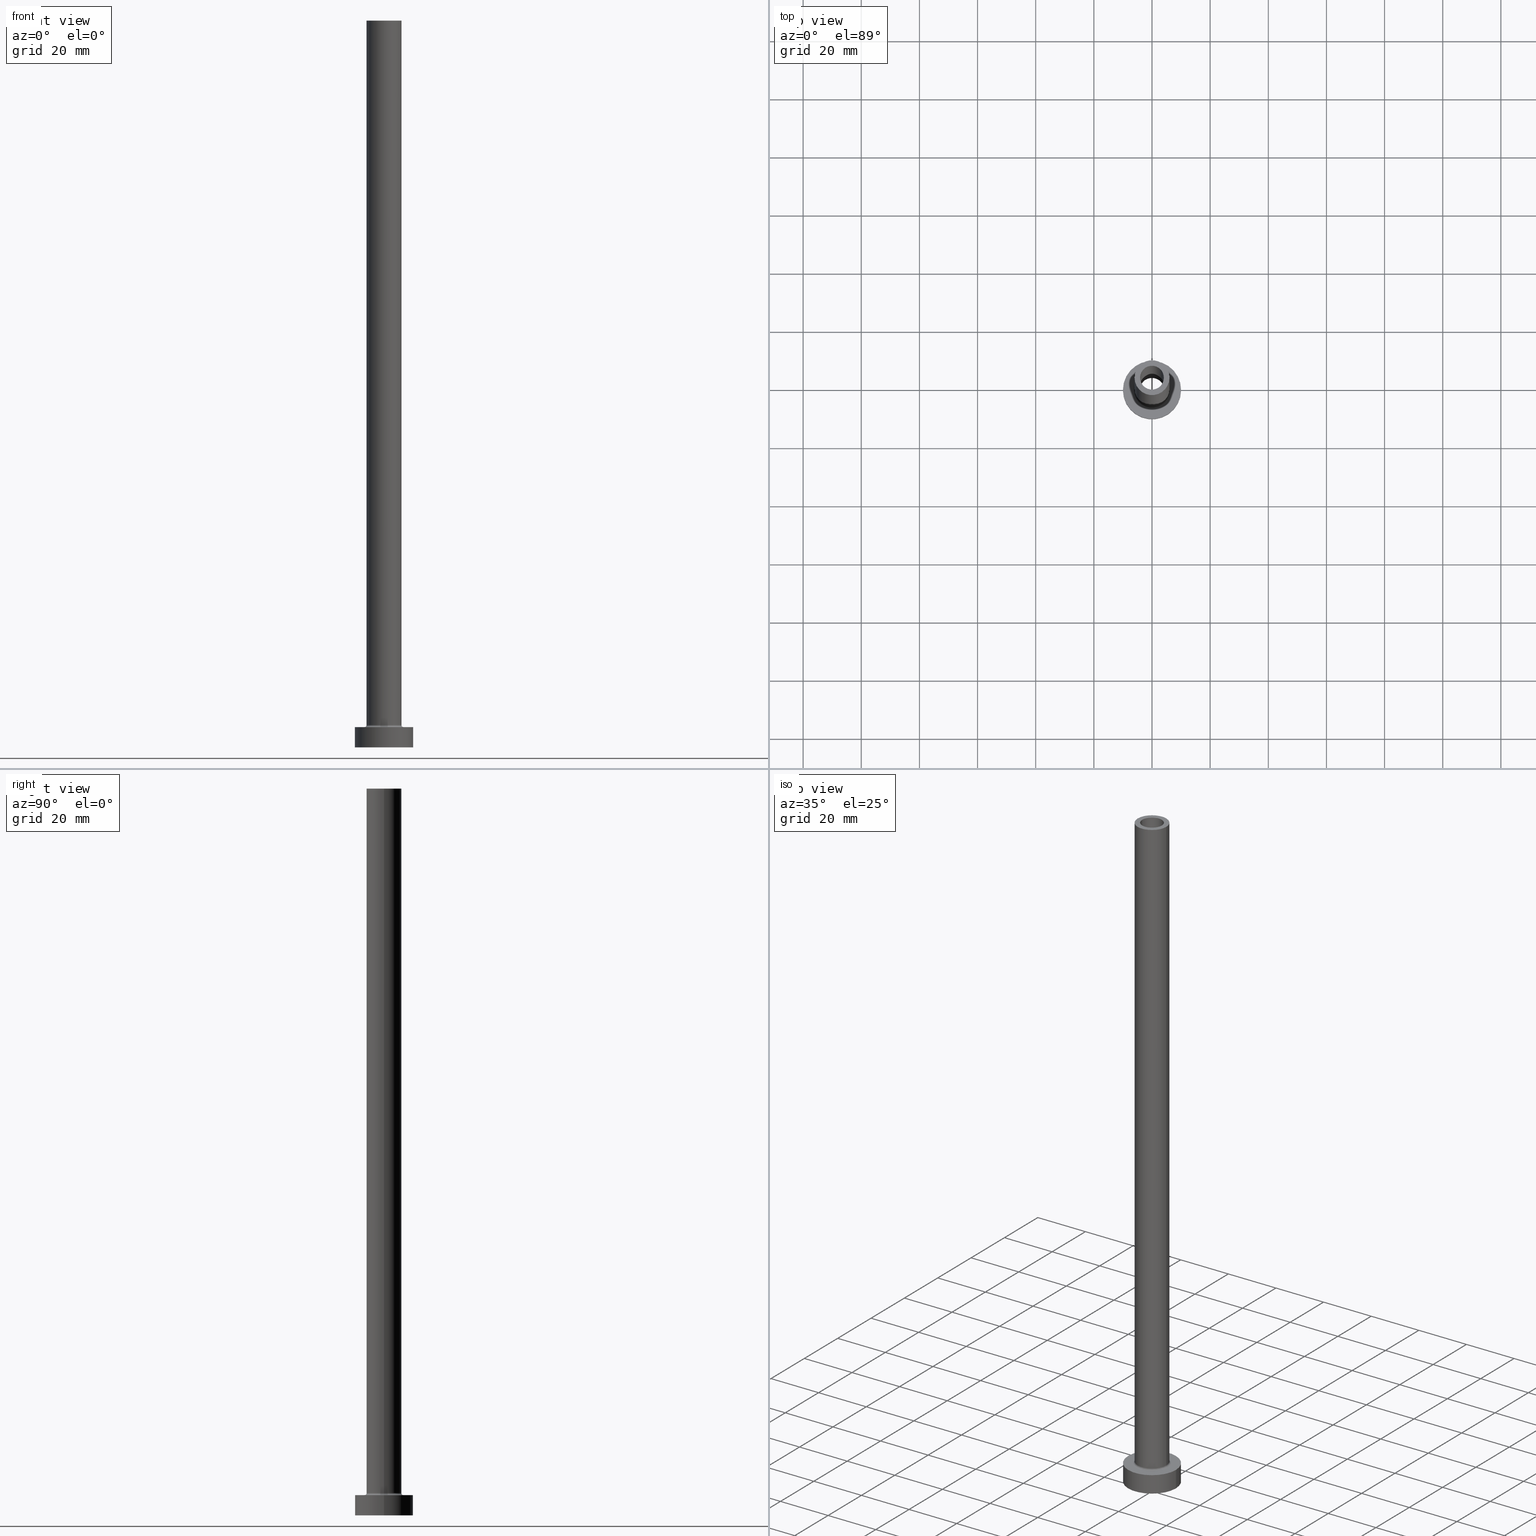
[diagram: canonical four-view strip — front | top / right | iso, engineering-drawing reading convention]
A machine part, canonical four-view strip (front | top / right | iso — engineering-drawing reading convention). The complete STEP part file that produces these views, byte-faithful:
ISO-10303-21;
HEADER;
FILE_DESCRIPTION (( 'STEP AP203' ),
    '1' );
FILE_NAME ('bac2.STEP',
    '2023-02-13T07:40:30',
    ( '' ),
    ( '' ),
    'SwSTEP 2.0',
    'SolidWorks 2019',
    '' );
FILE_SCHEMA (( 'CONFIG_CONTROL_DESIGN' ));
ENDSEC;

DATA;
#1 = FACE_OUTER_BOUND ( 'NONE', #306, .T. ) ;
#2 = DIRECTION ( 'NONE',  ( 0.000000000000000000, 0.000000000000000000, 1.000000000000000000 ) ) ;
#3 = DIRECTION ( 'NONE',  ( 1.000000000000000000, 0.000000000000000000, 0.000000000000000000 ) ) ;
#4 = ORGANIZATION ( 'NEUR�EN�', 'NEUR�EN�', '' ) ;
#5 = DIRECTION ( 'NONE',  ( 1.000000000000000000, 0.000000000000000000, 0.000000000000000000 ) ) ;
#6 = EDGE_LOOP ( 'NONE', ( #126, #346 ) ) ;
#7 = DIRECTION ( 'NONE',  ( 0.000000000000000000, 0.000000000000000000, 1.000000000000000000 ) ) ;
#8 = FACE_OUTER_BOUND ( 'NONE', #383, .T. ) ;
#9 = EDGE_CURVE ( 'NONE', #52, #75, #183, .T. ) ;
#10 = CARTESIAN_POINT ( 'NONE',  ( -4.099999999999999645, 0.000000000000000000, 250.0000000000000000 ) ) ;
#11 = CARTESIAN_POINT ( 'NONE',  ( 0.000000000000000000, 0.000000000000000000, 7.000000000000000000 ) ) ;
#12 = DIRECTION ( 'NONE',  ( 1.000000000000000000, 0.000000000000000000, 0.000000000000000000 ) ) ;
#13 = EDGE_CURVE ( 'NONE', #82, #233, #455, .T. ) ;
#14 = CC_DESIGN_PERSON_AND_ORGANIZATION_ASSIGNMENT ( #112, #110, ( #190 ) ) ;
#15 = CARTESIAN_POINT ( 'NONE',  ( 0.000000000000000000, 0.000000000000000000, 250.0000000000000000 ) ) ;
#16 = ORIENTED_EDGE ( 'NONE', *, *, #321, .F. ) ;
#17 = PRODUCT_DEFINITION_FORMATION_WITH_SPECIFIED_SOURCE ( 'LIBOVOLN�', '', #190, .NOT_KNOWN. ) ;
#18 = VERTEX_POINT ( 'NONE', #174 ) ;
#19 = APPROVAL ( #236, 'NEUR�EN�' ) ;
#20 = DESIGN_CONTEXT ( 'detailed design', #194, 'design' ) ;
#21 = ORIENTED_EDGE ( 'NONE', *, *, #394, .F. ) ;
#22 = EDGE_LOOP ( 'NONE', ( #21, #299, #51, #379 ) ) ;
#23 = AXIS2_PLACEMENT_3D ( 'NONE', #353, #389, #426 ) ;
#24 = AXIS2_PLACEMENT_3D ( 'NONE', #441, #125, #273 ) ;
#25 = PLANE ( 'NONE',  #146 ) ;
#26 = CARTESIAN_POINT ( 'NONE',  ( 0.000000000000000000, 0.000000000000000000, 7.000000000000000000 ) ) ;
#27 = ORIENTED_EDGE ( 'NONE', *, *, #100, .F. ) ;
#28 = SHAPE_DEFINITION_REPRESENTATION ( #370, #200 ) ;
#29 = CARTESIAN_POINT ( 'NONE',  ( 10.00000000000000000, 1.224646799147353256E-15, 0.000000000000000000 ) ) ;
#30 = CARTESIAN_POINT ( 'NONE',  ( -6.000000000000000888, 0.000000000000000000, 250.0000000000000000 ) ) ;
#31 = ORIENTED_EDGE ( 'NONE', *, *, #442, .F. ) ;
#32 = FACE_OUTER_BOUND ( 'NONE', #49, .T. ) ;
#33 = DIRECTION ( 'NONE',  ( 1.000000000000000000, 0.000000000000000000, 0.000000000000000000 ) ) ;
#34 = DIRECTION ( 'NONE',  ( -1.000000000000000000, 0.000000000000000000, 0.000000000000000000 ) ) ;
#35 = CIRCLE ( 'NONE', #191, 4.250000000000000000 ) ;
#36 = FACE_BOUND ( 'NONE', #203, .T. ) ;
#37 = AXIS2_PLACEMENT_3D ( 'NONE', #402, #76, #71 ) ;
#38 = ADVANCED_FACE ( 'NONE', ( #310, #170 ), #414, .T. ) ;
#39 = CYLINDRICAL_SURFACE ( 'NONE', #339, 4.099999999999999645 ) ;
#40 =( NAMED_UNIT ( * ) PLANE_ANGLE_UNIT ( ) SI_UNIT ( $, .RADIAN. ) );
#41 = CARTESIAN_POINT ( 'NONE',  ( 0.000000000000000000, 0.000000000000000000, 7.000000000000000000 ) ) ;
#42 = VERTEX_POINT ( 'NONE', #171 ) ;
#43 = PERSON_AND_ORGANIZATION_ROLE ( 'creator' ) ;
#44 = VERTEX_POINT ( 'NONE', #132 ) ;
#45 = MECHANICAL_CONTEXT ( 'NONE', #288, 'mechanical' ) ;
#46 = AXIS2_PLACEMENT_3D ( 'NONE', #329, #141, #33 ) ;
#47 = EDGE_CURVE ( 'NONE', #18, #113, #104, .T. ) ;
#48 = ORIENTED_EDGE ( 'NONE', *, *, #437, .F. ) ;
#49 = EDGE_LOOP ( 'NONE', ( #451, #347, #381, #27 ) ) ;
#50 = AXIS2_PLACEMENT_3D ( 'NONE', #225, #143, #101 ) ;
#51 = ORIENTED_EDGE ( 'NONE', *, *, #217, .T. ) ;
#52 = VERTEX_POINT ( 'NONE', #96 ) ;
#53 = ORIENTED_EDGE ( 'NONE', *, *, #177, .F. ) ;
#54 = EDGE_CURVE ( 'NONE', #44, #82, #374, .T. ) ;
#55 = ADVANCED_FACE ( 'NONE', ( #278, #315 ), #25, .T. ) ;
#56 = CC_DESIGN_APPROVAL ( #19, ( #17 ) ) ;
#57 = ORIENTED_EDGE ( 'NONE', *, *, #321, .T. ) ;
#58 = DIRECTION ( 'NONE',  ( 0.000000000000000000, 0.000000000000000000, -1.000000000000000000 ) ) ;
#59 = COORDINATED_UNIVERSAL_TIME_OFFSET ( 1, 0, .AHEAD. ) ;
#60 = DIRECTION ( 'NONE',  ( 0.000000000000000000, -1.000000000000000000, 0.000000000000000000 ) ) ;
#61 = DIRECTION ( 'NONE',  ( 1.000000000000000000, 0.000000000000000000, -0.000000000000000000 ) ) ;
#62 = ORIENTED_EDGE ( 'NONE', *, *, #87, .F. ) ;
#63 = CIRCLE ( 'NONE', #332, 4.099999999999999645 ) ;
#64 = AXIS2_PLACEMENT_3D ( 'NONE', #216, #256, #12 ) ;
#65 = DIRECTION ( 'NONE',  ( 0.000000000000000000, 0.000000000000000000, 1.000000000000000000 ) ) ;
#66 = DIRECTION ( 'NONE',  ( -1.000000000000000000, 1.224646799147353454E-16, 0.000000000000000000 ) ) ;
#67 = DIRECTION ( 'NONE',  ( 0.000000000000000000, 0.000000000000000000, 1.000000000000000000 ) ) ;
#68 = DIRECTION ( 'NONE',  ( 1.000000000000000000, 0.000000000000000000, 0.000000000000000000 ) ) ;
#69 = DIRECTION ( 'NONE',  ( 1.000000000000000000, 0.000000000000000000, 0.000000000000000000 ) ) ;
#70 = LINE ( 'NONE', #107, #93 ) ;
#71 = DIRECTION ( 'NONE',  ( -1.000000000000000000, 0.000000000000000000, 0.000000000000000000 ) ) ;
#72 = CIRCLE ( 'NONE', #401, 6.700000000000001066 ) ;
#73 = DIRECTION ( 'NONE',  ( -0.000000000000000000, -0.000000000000000000, -1.000000000000000000 ) ) ;
#74 = APPLICATION_PROTOCOL_DEFINITION ( 'international standard', 'config_control_design', 1994, #194 ) ;
#75 = VERTEX_POINT ( 'NONE', #456 ) ;
#76 = DIRECTION ( 'NONE',  ( -0.000000000000000000, -0.000000000000000000, -1.000000000000000000 ) ) ;
#77 = FACE_OUTER_BOUND ( 'NONE', #277, .T. ) ;
#78 = VECTOR ( 'NONE', #420, 1000.000000000000000 ) ;
#79 = AXIS2_PLACEMENT_3D ( 'NONE', #252, #249, #293 ) ;
#80 = VERTEX_POINT ( 'NONE', #102 ) ;
#81 = EDGE_CURVE ( 'NONE', #342, #155, #281, .T. ) ;
#82 = VERTEX_POINT ( 'NONE', #349 ) ;
#83 = ORIENTED_EDGE ( 'NONE', *, *, #47, .T. ) ;
#84 = APPROVAL_ROLE ( '' ) ;
#85 = AXIS2_PLACEMENT_3D ( 'NONE', #325, #151, #61 ) ;
#86 = VERTEX_POINT ( 'NONE', #284 ) ;
#87 = EDGE_CURVE ( 'NONE', #410, #342, #311, .T. ) ;
#88 = DATE_AND_TIME ( #385, #128 ) ;
#89 = ORIENTED_EDGE ( 'NONE', *, *, #197, .T. ) ;
#90 = EDGE_CURVE ( 'NONE', #155, #75, #72, .T. ) ;
#91 = DIRECTION ( 'NONE',  ( 1.000000000000000000, 0.000000000000000000, 0.000000000000000000 ) ) ;
#92 = DATE_TIME_ROLE ( 'classification_date' ) ;
#93 = VECTOR ( 'NONE', #182, 1000.000000000000000 ) ;
#94 = ORIENTED_EDGE ( 'NONE', *, *, #417, .F. ) ;
#95 = VECTOR ( 'NONE', #111, 1000.000000000000000 ) ;
#96 = CARTESIAN_POINT ( 'NONE',  ( -6.000000000000000888, 0.000000000000000000, 7.700000000000012612 ) ) ;
#97 = EDGE_LOOP ( 'NONE', ( #129, #239 ) ) ;
#98 = COORDINATED_UNIVERSAL_TIME_OFFSET ( 1, 0, .AHEAD. ) ;
#99 = LINE ( 'NONE', #131, #242 ) ;
#100 = EDGE_CURVE ( 'NONE', #42, #234, #99, .T. ) ;
#101 = DIRECTION ( 'NONE',  ( 1.000000000000000000, 0.000000000000000000, 0.000000000000000000 ) ) ;
#102 = CARTESIAN_POINT ( 'NONE',  ( 4.250000000000000000, 5.204748896376250699E-16, 205.0000000000000284 ) ) ;
#103 = FACE_OUTER_BOUND ( 'NONE', #165, .T. ) ;
#104 = LINE ( 'NONE', #250, #78 ) ;
#105 = AXIS2_PLACEMENT_3D ( 'NONE', #106, #67, #69 ) ;
#106 = CARTESIAN_POINT ( 'NONE',  ( 0.000000000000000000, 0.000000000000000000, 7.700000000000012612 ) ) ;
#107 = CARTESIAN_POINT ( 'NONE',  ( 4.250000000000000000, 5.204748896376250699E-16, 217.0208152801713197 ) ) ;
#108 = DIRECTION ( 'NONE',  ( 1.000000000000000000, 0.000000000000000000, 0.000000000000000000 ) ) ;
#109 = CARTESIAN_POINT ( 'NONE',  ( 0.000000000000000000, 0.000000000000000000, 205.0000000000000284 ) ) ;
#110 = PERSON_AND_ORGANIZATION_ROLE ( 'design_owner' ) ;
#111 = DIRECTION ( 'NONE',  ( -0.000000000000000000, -0.000000000000000000, -1.000000000000000000 ) ) ;
#112 = PERSON_AND_ORGANIZATION ( #251, #4 ) ;
#113 = VERTEX_POINT ( 'NONE', #248 ) ;
#114 = CIRCLE ( 'NONE', #199, 4.250000000000000000 ) ;
#115 = CC_DESIGN_PERSON_AND_ORGANIZATION_ASSIGNMENT ( #116, #43, ( #396 ) ) ;
#116 = PERSON_AND_ORGANIZATION ( #251, #4 ) ;
#117 = CLOSED_SHELL ( 'NONE', ( #179, #144, #351, #359, #460, #260, #38, #119, #428, #55, #388, #272, #376, #443 ) ) ;
#118 = TOROIDAL_SURFACE ( 'NONE', #64, 6.700000000000001066, 0.6999999999999999556 ) ;
#119 = ADVANCED_FACE ( 'NONE', ( #240, #391 ), #215, .F. ) ;
#120 = VERTEX_POINT ( 'NONE', #29 ) ;
#121 = ORIENTED_EDGE ( 'NONE', *, *, #87, .T. ) ;
#122 = ORIENTED_EDGE ( 'NONE', *, *, #425, .T. ) ;
#123 = MANIFOLD_SOLID_BREP ( 'Odebrat vysunut�m4', #117 ) ;
#124 = UNCERTAINTY_MEASURE_WITH_UNIT (LENGTH_MEASURE( 1.000000000000000082E-05 ), #150, 'distance_accuracy_value', 'NONE');
#125 = DIRECTION ( 'NONE',  ( 0.000000000000000000, 0.000000000000000000, 1.000000000000000000 ) ) ;
#126 = ORIENTED_EDGE ( 'NONE', *, *, #442, .T. ) ;
#127 =( GEOMETRIC_REPRESENTATION_CONTEXT ( 3 ) GLOBAL_UNCERTAINTY_ASSIGNED_CONTEXT ( ( #124 ) ) GLOBAL_UNIT_ASSIGNED_CONTEXT ( ( #150, #40, #373 ) ) REPRESENTATION_CONTEXT ( 'NONE', 'WORKASPACE' ) );
#128 = LOCAL_TIME ( 8, 40, 30.00000000000000000, #59 ) ;
#129 = ORIENTED_EDGE ( 'NONE', *, *, #90, .T. ) ;
#130 = EDGE_CURVE ( 'NONE', #449, #234, #35, .T. ) ;
#131 = CARTESIAN_POINT ( 'NONE',  ( -4.250000000000000000, 0.000000000000000000, 217.0208152801713197 ) ) ;
#132 = CARTESIAN_POINT ( 'NONE',  ( -4.099999999999999645, 0.000000000000000000, 250.0000000000000000 ) ) ;
#133 = ORIENTED_EDGE ( 'NONE', *, *, #294, .T. ) ;
#134 = PRODUCT_RELATED_PRODUCT_CATEGORY ( 'detail', '', ( #190 ) ) ;
#135 = COORDINATED_UNIVERSAL_TIME_OFFSET ( 1, 0, .AHEAD. ) ;
#136 = AXIS2_PLACEMENT_3D ( 'NONE', #416, #423, #395 ) ;
#137 = DIRECTION ( 'NONE',  ( -0.000000000000000000, -0.000000000000000000, -1.000000000000000000 ) ) ;
#138 = EDGE_CURVE ( 'NONE', #80, #42, #303, .T. ) ;
#139 = PERSON_AND_ORGANIZATION_ROLE ( 'creator' ) ;
#140 = EDGE_LOOP ( 'NONE', ( #16, #377 ) ) ;
#141 = DIRECTION ( 'NONE',  ( 0.000000000000000000, 0.000000000000000000, 1.000000000000000000 ) ) ;
#142 = CARTESIAN_POINT ( 'NONE',  ( 0.000000000000000000, 0.000000000000000000, 250.0000000000000000 ) ) ;
#143 = DIRECTION ( 'NONE',  ( 0.000000000000000000, 0.000000000000000000, 1.000000000000000000 ) ) ;
#144 = ADVANCED_FACE ( 'NONE', ( #32 ), #430, .F. ) ;
#145 = DIRECTION ( 'NONE',  ( 0.000000000000000000, 0.000000000000000000, 1.000000000000000000 ) ) ;
#146 = AXIS2_PLACEMENT_3D ( 'NONE', #142, #206, #245 ) ;
#147 = CIRCLE ( 'NONE', #184, 10.00000000000000000 ) ;
#148 = DIRECTION ( 'NONE',  ( 0.000000000000000000, 0.000000000000000000, 1.000000000000000000 ) ) ;
#149 = FACE_OUTER_BOUND ( 'NONE', #307, .T. ) ;
#150 =( LENGTH_UNIT ( ) NAMED_UNIT ( * ) SI_UNIT ( .MILLI., .METRE. ) );
#151 = DIRECTION ( 'NONE',  ( 0.000000000000000000, 0.000000000000000000, 1.000000000000000000 ) ) ;
#152 = CARTESIAN_POINT ( 'NONE',  ( -4.250000000000000000, 0.000000000000000000, 0.000000000000000000 ) ) ;
#153 = CYLINDRICAL_SURFACE ( 'NONE', #37, 10.00000000000000000 ) ;
#154 = ORIENTED_EDGE ( 'NONE', *, *, #13, .T. ) ;
#155 = VERTEX_POINT ( 'NONE', #358 ) ;
#156 = APPROVAL_STATUS ( 'not_yet_approved' ) ;
#157 = CIRCLE ( 'NONE', #411, 6.000000000000000888 ) ;
#158 = DIRECTION ( 'NONE',  ( 1.000000000000000000, 0.000000000000000000, 0.000000000000000000 ) ) ;
#159 = PERSON_AND_ORGANIZATION ( #251, #4 ) ;
#160 = ORIENTED_EDGE ( 'NONE', *, *, #138, .T. ) ;
#161 = LOCAL_TIME ( 8, 40, 30.00000000000000000, #135 ) ;
#162 = ORIENTED_EDGE ( 'NONE', *, *, #54, .F. ) ;
#163 = EDGE_LOOP ( 'NONE', ( #162, #407 ) ) ;
#164 = CC_DESIGN_PERSON_AND_ORGANIZATION_ASSIGNMENT ( #352, #454, ( #323 ) ) ;
#165 = EDGE_LOOP ( 'NONE', ( #244, #121, #133, #94 ) ) ;
#166 = EDGE_LOOP ( 'NONE', ( #363, #271 ) ) ;
#167 = AXIS2_PLACEMENT_3D ( 'NONE', #41, #221, #429 ) ;
#168 = APPROVAL_ROLE ( '' ) ;
#169 = DIRECTION ( 'NONE',  ( 0.000000000000000000, 0.000000000000000000, -1.000000000000000000 ) ) ;
#170 = FACE_OUTER_BOUND ( 'NONE', #6, .T. ) ;
#171 = CARTESIAN_POINT ( 'NONE',  ( -4.250000000000000000, 0.000000000000000000, 205.0000000000000284 ) ) ;
#172 = AXIS2_PLACEMENT_3D ( 'NONE', #319, #324, #5 ) ;
#173 = AXIS2_PLACEMENT_3D ( 'NONE', #286, #459, #360 ) ;
#174 = CARTESIAN_POINT ( 'NONE',  ( -10.00000000000000000, 0.000000000000000000, 7.000000000000000000 ) ) ;
#175 = CARTESIAN_POINT ( 'NONE',  ( 0.000000000000000000, 0.000000000000000000, 250.0000000000000000 ) ) ;
#176 = DIRECTION ( 'NONE',  ( -0.000000000000000000, -0.000000000000000000, -1.000000000000000000 ) ) ;
#177 = EDGE_CURVE ( 'NONE', #80, #449, #70, .T. ) ;
#178 = CARTESIAN_POINT ( 'NONE',  ( 0.000000000000000000, 0.000000000000000000, 7.700000000000012612 ) ) ;
#179 = ADVANCED_FACE ( 'NONE', ( #149 ), #39, .F. ) ;
#180 = DIRECTION ( 'NONE',  ( 1.000000000000000000, 0.000000000000000000, 0.000000000000000000 ) ) ;
#181 = LINE ( 'NONE', #185, #348 ) ;
#182 = DIRECTION ( 'NONE',  ( 0.000000000000000000, 0.000000000000000000, -1.000000000000000000 ) ) ;
#183 = CIRCLE ( 'NONE', #253, 0.7000000000000000666 ) ;
#184 = AXIS2_PLACEMENT_3D ( 'NONE', #11, #7, #192 ) ;
#185 = CARTESIAN_POINT ( 'NONE',  ( 10.00000000000000000, 1.224646799147353256E-15, 7.000000000000000000 ) ) ;
#186 = DIRECTION ( 'NONE',  ( 0.000000000000000000, 0.000000000000000000, -1.000000000000000000 ) ) ;
#187 = FACE_OUTER_BOUND ( 'NONE', #198, .T. ) ;
#188 = CALENDAR_DATE ( 2023, 13, 2 ) ;
#189 = EDGE_LOOP ( 'NONE', ( #205, #372, #305, #368 ) ) ;
#190 = PRODUCT ( 'bac2', 'bac2', '', ( #45 ) ) ;
#191 = AXIS2_PLACEMENT_3D ( 'NONE', #356, #176, #317 ) ;
#192 = DIRECTION ( 'NONE',  ( 1.000000000000000000, 0.000000000000000000, 0.000000000000000000 ) ) ;
#193 = LOCAL_TIME ( 8, 40, 30.00000000000000000, #231 ) ;
#194 = APPLICATION_CONTEXT ( 'configuration controlled 3d designs of mechanical parts and assemblies' ) ;
#195 = ORIENTED_EDGE ( 'NONE', *, *, #100, .T. ) ;
#196 = DATE_AND_TIME ( #188, #193 ) ;
#197 = EDGE_CURVE ( 'NONE', #233, #304, #365, .T. ) ;
#198 = EDGE_LOOP ( 'NONE', ( #53, #160, #195, #57 ) ) ;
#199 = AXIS2_PLACEMENT_3D ( 'NONE', #298, #202, #158 ) ;
#200 = ADVANCED_BREP_SHAPE_REPRESENTATION ( 'bac2', ( #123, #24 ), #127 ) ;
#201 = ORIENTED_EDGE ( 'NONE', *, *, #207, .T. ) ;
#202 = DIRECTION ( 'NONE',  ( 0.000000000000000000, 0.000000000000000000, 1.000000000000000000 ) ) ;
#203 = EDGE_LOOP ( 'NONE', ( #201, #89 ) ) ;
#204 = PERSON_AND_ORGANIZATION ( #251, #4 ) ;
#205 = ORIENTED_EDGE ( 'NONE', *, *, #9, .F. ) ;
#206 = DIRECTION ( 'NONE',  ( 0.000000000000000000, 0.000000000000000000, 1.000000000000000000 ) ) ;
#207 = EDGE_CURVE ( 'NONE', #304, #233, #290, .T. ) ;
#208 = PERSON_AND_ORGANIZATION ( #251, #4 ) ;
#209 = DIRECTION ( 'NONE',  ( -0.000000000000000000, -0.000000000000000000, -1.000000000000000000 ) ) ;
#210 = DATE_AND_TIME ( #452, #419 ) ;
#211 = DIRECTION ( 'NONE',  ( 1.224646799147353207E-16, 1.000000000000000000, -0.000000000000000000 ) ) ;
#212 = DIRECTION ( 'NONE',  ( 0.000000000000000000, 0.000000000000000000, 1.000000000000000000 ) ) ;
#213 = VECTOR ( 'NONE', #209, 1000.000000000000000 ) ;
#214 = TOROIDAL_SURFACE ( 'NONE', #355, 6.700000000000001066, 0.6999999999999999556 ) ;
#215 = PLANE ( 'NONE',  #23 ) ;
#216 = CARTESIAN_POINT ( 'NONE',  ( 0.000000000000000000, 0.000000000000000000, 7.700000000000012612 ) ) ;
#217 = EDGE_CURVE ( 'NONE', #120, #113, #268, .T. ) ;
#218 = DIRECTION ( 'NONE',  ( 0.000000000000000000, 0.000000000000000000, 1.000000000000000000 ) ) ;
#219 = FACE_OUTER_BOUND ( 'NONE', #340, .T. ) ;
#220 = CARTESIAN_POINT ( 'NONE',  ( 4.099999999999999645, 5.021051876504146399E-16, 205.0000000000000284 ) ) ;
#221 = DIRECTION ( 'NONE',  ( -0.000000000000000000, -0.000000000000000000, -1.000000000000000000 ) ) ;
#222 = DIRECTION ( 'NONE',  ( 0.000000000000000000, 0.000000000000000000, -1.000000000000000000 ) ) ;
#223 = AXIS2_PLACEMENT_3D ( 'NONE', #15, #301, #224 ) ;
#224 = DIRECTION ( 'NONE',  ( -1.000000000000000000, 0.000000000000000000, 0.000000000000000000 ) ) ;
#225 = CARTESIAN_POINT ( 'NONE',  ( 0.000000000000000000, 0.000000000000000000, 0.000000000000000000 ) ) ;
#226 = EDGE_CURVE ( 'NONE', #82, #44, #63, .T. ) ;
#227 = CALENDAR_DATE ( 2023, 13, 2 ) ;
#228 = ORIENTED_EDGE ( 'NONE', *, *, #338, .F. ) ;
#229 = CARTESIAN_POINT ( 'NONE',  ( 0.000000000000000000, 0.000000000000000000, 250.0000000000000000 ) ) ;
#230 = EDGE_CURVE ( 'NONE', #44, #304, #292, .T. ) ;
#231 = COORDINATED_UNIVERSAL_TIME_OFFSET ( 1, 0, .AHEAD. ) ;
#232 = CIRCLE ( 'NONE', #263, 10.00000000000000000 ) ;
#233 = VERTEX_POINT ( 'NONE', #220 ) ;
#234 = VERTEX_POINT ( 'NONE', #152 ) ;
#235 = CC_DESIGN_PERSON_AND_ORGANIZATION_ASSIGNMENT ( #247, #415, ( #17 ) ) ;
#236 = APPROVAL_STATUS ( 'not_yet_approved' ) ;
#237 = EDGE_LOOP ( 'NONE', ( #446, #122 ) ) ;
#238 = CALENDAR_DATE ( 2023, 13, 2 ) ;
#239 = ORIENTED_EDGE ( 'NONE', *, *, #241, .T. ) ;
#240 = FACE_BOUND ( 'NONE', #140, .T. ) ;
#241 = EDGE_CURVE ( 'NONE', #75, #155, #334, .T. ) ;
#242 = VECTOR ( 'NONE', #169, 1000.000000000000000 ) ;
#243 = AXIS2_PLACEMENT_3D ( 'NONE', #283, #148, #316 ) ;
#244 = ORIENTED_EDGE ( 'NONE', *, *, #425, .F. ) ;
#245 = DIRECTION ( 'NONE',  ( 1.000000000000000000, 0.000000000000000000, -0.000000000000000000 ) ) ;
#246 = ORIENTED_EDGE ( 'NONE', *, *, #361, .F. ) ;
#247 = PERSON_AND_ORGANIZATION ( #251, #4 ) ;
#248 = CARTESIAN_POINT ( 'NONE',  ( -10.00000000000000000, 0.000000000000000000, 0.000000000000000000 ) ) ;
#249 = DIRECTION ( 'NONE',  ( -0.000000000000000000, -0.000000000000000000, -1.000000000000000000 ) ) ;
#250 = CARTESIAN_POINT ( 'NONE',  ( -10.00000000000000000, 0.000000000000000000, 7.000000000000000000 ) ) ;
#251 = PERSON ( 'NEUR�EN�', 'NEUR�EN�', 'NEUR�EN�', ('NEUR�EN�'), ('NEUR�EN�'), ('NEUR�EN�') ) ;
#252 = CARTESIAN_POINT ( 'NONE',  ( 0.000000000000000000, 0.000000000000000000, 250.0000000000000000 ) ) ;
#253 = AXIS2_PLACEMENT_3D ( 'NONE', #255, #211, #66 ) ;
#254 = AXIS2_PLACEMENT_3D ( 'NONE', #297, #398, #289 ) ;
#255 = CARTESIAN_POINT ( 'NONE',  ( -6.700000000000001066, 8.205133554287267548E-16, 7.700000000000012612 ) ) ;
#256 = DIRECTION ( 'NONE',  ( 0.000000000000000000, 0.000000000000000000, 1.000000000000000000 ) ) ;
#257 = DIRECTION ( 'NONE',  ( 0.000000000000000000, 0.000000000000000000, -1.000000000000000000 ) ) ;
#258 = CARTESIAN_POINT ( 'NONE',  ( 6.000000000000000888, 7.347880794884120722E-16, 250.0000000000000000 ) ) ;
#259 = CARTESIAN_POINT ( 'NONE',  ( 0.000000000000000000, 0.000000000000000000, 0.000000000000000000 ) ) ;
#260 = ADVANCED_FACE ( 'NONE', ( #219 ), #434, .T. ) ;
#261 = DIRECTION ( 'NONE',  ( -1.000000000000000000, 0.000000000000000000, 0.000000000000000000 ) ) ;
#262 = CYLINDRICAL_SURFACE ( 'NONE', #173, 4.250000000000000000 ) ;
#263 = AXIS2_PLACEMENT_3D ( 'NONE', #431, #212, #108 ) ;
#264 = CARTESIAN_POINT ( 'NONE',  ( -6.000000000000000888, 0.000000000000000000, 250.0000000000000000 ) ) ;
#265 = ORIENTED_EDGE ( 'NONE', *, *, #345, .T. ) ;
#266 = CARTESIAN_POINT ( 'NONE',  ( 4.250000000000000000, 5.204748896376250699E-16, 0.000000000000000000 ) ) ;
#267 = EDGE_CURVE ( 'NONE', #52, #342, #308, .T. ) ;
#268 = CIRCLE ( 'NONE', #275, 10.00000000000000000 ) ;
#269 = APPROVAL_PERSON_ORGANIZATION ( #159, #19, #309 ) ;
#270 = ORIENTED_EDGE ( 'NONE', *, *, #226, .T. ) ;
#271 = ORIENTED_EDGE ( 'NONE', *, *, #217, .F. ) ;
#272 = ADVANCED_FACE ( 'NONE', ( #187 ), #262, .F. ) ;
#273 = DIRECTION ( 'NONE',  ( 1.000000000000000000, 0.000000000000000000, 0.000000000000000000 ) ) ;
#274 = ORIENTED_EDGE ( 'NONE', *, *, #267, .F. ) ;
#275 = AXIS2_PLACEMENT_3D ( 'NONE', #259, #2, #399 ) ;
#276 = AXIS2_PLACEMENT_3D ( 'NONE', #109, #432, #397 ) ;
#277 = EDGE_LOOP ( 'NONE', ( #408, #270, #453, #427 ) ) ;
#278 = FACE_BOUND ( 'NONE', #163, .T. ) ;
#279 = APPROVAL_DATE_TIME ( #88, #19 ) ;
#280 = ORIENTED_EDGE ( 'NONE', *, *, #230, .F. ) ;
#281 = CIRCLE ( 'NONE', #444, 0.7000000000000000666 ) ;
#282 = CARTESIAN_POINT ( 'NONE',  ( 4.099999999999999645, 5.021051876504146399E-16, 250.0000000000000000 ) ) ;
#283 = CARTESIAN_POINT ( 'NONE',  ( 0.000000000000000000, 0.000000000000000000, 7.700000000000012612 ) ) ;
#284 = CARTESIAN_POINT ( 'NONE',  ( 10.00000000000000000, 1.224646799147353256E-15, 7.000000000000000000 ) ) ;
#285 = APPROVAL ( #156, 'NEUR�EN�' ) ;
#286 = CARTESIAN_POINT ( 'NONE',  ( 0.000000000000000000, 0.000000000000000000, 217.0208152801713197 ) ) ;
#287 = CARTESIAN_POINT ( 'NONE',  ( 6.000000000000000888, 7.347880794884120722E-16, 250.0000000000000000 ) ) ;
#288 = APPLICATION_CONTEXT ( 'configuration controlled 3d designs of mechanical parts and assemblies' ) ;
#289 = DIRECTION ( 'NONE',  ( 1.000000000000000000, 0.000000000000000000, 0.000000000000000000 ) ) ;
#290 = CIRCLE ( 'NONE', #276, 4.099999999999999645 ) ;
#291 = CC_DESIGN_APPROVAL ( #285, ( #396 ) ) ;
#292 = LINE ( 'NONE', #10, #322 ) ;
#293 = DIRECTION ( 'NONE',  ( -1.000000000000000000, 0.000000000000000000, 0.000000000000000000 ) ) ;
#294 = EDGE_CURVE ( 'NONE', #342, #52, #314, .T. ) ;
#295 = CARTESIAN_POINT ( 'NONE',  ( 0.000000000000000000, 0.000000000000000000, 250.0000000000000000 ) ) ;
#296 = DIRECTION ( 'NONE',  ( 0.000000000000000000, 0.000000000000000000, 1.000000000000000000 ) ) ;
#297 = CARTESIAN_POINT ( 'NONE',  ( 0.000000000000000000, 0.000000000000000000, 7.000000000000000000 ) ) ;
#298 = CARTESIAN_POINT ( 'NONE',  ( 0.000000000000000000, 0.000000000000000000, 205.0000000000000284 ) ) ;
#299 = ORIENTED_EDGE ( 'NONE', *, *, #361, .T. ) ;
#300 = APPROVAL ( #382, 'NEUR�EN�' ) ;
#301 = DIRECTION ( 'NONE',  ( -0.000000000000000000, -0.000000000000000000, -1.000000000000000000 ) ) ;
#302 = CYLINDRICAL_SURFACE ( 'NONE', #375, 4.099999999999999645 ) ;
#303 = CIRCLE ( 'NONE', #378, 4.250000000000000000 ) ;
#304 = VERTEX_POINT ( 'NONE', #400 ) ;
#305 = ORIENTED_EDGE ( 'NONE', *, *, #81, .T. ) ;
#306 = EDGE_LOOP ( 'NONE', ( #62, #228, #344, #403 ) ) ;
#307 = EDGE_LOOP ( 'NONE', ( #343, #154, #337, #280 ) ) ;
#308 = CIRCLE ( 'NONE', #243, 6.000000000000000888 ) ;
#309 = APPROVAL_ROLE ( '' ) ;
#310 = FACE_BOUND ( 'NONE', #97, .T. ) ;
#311 = LINE ( 'NONE', #287, #213 ) ;
#312 = SECURITY_CLASSIFICATION_LEVEL ( 'unclassified' ) ;
#313 = CARTESIAN_POINT ( 'NONE',  ( 0.000000000000000000, 0.000000000000000000, 250.0000000000000000 ) ) ;
#314 = CIRCLE ( 'NONE', #105, 6.000000000000000888 ) ;
#315 = FACE_OUTER_BOUND ( 'NONE', #237, .T. ) ;
#316 = DIRECTION ( 'NONE',  ( 1.000000000000000000, 0.000000000000000000, 0.000000000000000000 ) ) ;
#317 = DIRECTION ( 'NONE',  ( 1.000000000000000000, 0.000000000000000000, 0.000000000000000000 ) ) ;
#318 = DIRECTION ( 'NONE',  ( 1.000000000000000000, 0.000000000000000000, 0.000000000000000000 ) ) ;
#319 = CARTESIAN_POINT ( 'NONE',  ( 0.000000000000000000, 0.000000000000000000, 205.0000000000000284 ) ) ;
#320 = DIRECTION ( 'NONE',  ( -0.000000000000000000, -0.000000000000000000, -1.000000000000000000 ) ) ;
#321 = EDGE_CURVE ( 'NONE', #234, #449, #439, .T. ) ;
#322 = VECTOR ( 'NONE', #257, 1000.000000000000000 ) ;
#323 = SECURITY_CLASSIFICATION ( '', '', #312 ) ;
#324 = DIRECTION ( 'NONE',  ( 0.000000000000000000, 0.000000000000000000, 1.000000000000000000 ) ) ;
#325 = CARTESIAN_POINT ( 'NONE',  ( 0.000000000000000000, 0.000000000000000000, 205.0000000000000284 ) ) ;
#326 = CARTESIAN_POINT ( 'NONE',  ( 0.000000000000000000, 0.000000000000000000, 250.0000000000000000 ) ) ;
#327 = EDGE_LOOP ( 'NONE', ( #274, #438, #461, #413 ) ) ;
#328 = CYLINDRICAL_SURFACE ( 'NONE', #223, 6.000000000000000888 ) ;
#329 = CARTESIAN_POINT ( 'NONE',  ( 0.000000000000000000, 0.000000000000000000, 250.0000000000000000 ) ) ;
#330 = FACE_OUTER_BOUND ( 'NONE', #22, .T. ) ;
#331 = CC_DESIGN_DATE_AND_TIME_ASSIGNMENT ( #422, #92, ( #323 ) ) ;
#332 = AXIS2_PLACEMENT_3D ( 'NONE', #326, #145, #68 ) ;
#333 = CIRCLE ( 'NONE', #46, 6.000000000000000888 ) ;
#334 = CIRCLE ( 'NONE', #254, 6.700000000000001066 ) ;
#335 = DATE_AND_TIME ( #227, #366 ) ;
#336 = DATE_TIME_ROLE ( 'creation_date' ) ;
#337 = ORIENTED_EDGE ( 'NONE', *, *, #207, .F. ) ;
#338 = EDGE_CURVE ( 'NONE', #447, #410, #333, .T. ) ;
#339 = AXIS2_PLACEMENT_3D ( 'NONE', #295, #186, #34 ) ;
#340 = EDGE_LOOP ( 'NONE', ( #246, #31, #83, #265 ) ) ;
#341 = APPROVAL_PERSON_ORGANIZATION ( #405, #285, #84 ) ;
#342 = VERTEX_POINT ( 'NONE', #369 ) ;
#343 = ORIENTED_EDGE ( 'NONE', *, *, #54, .T. ) ;
#344 = ORIENTED_EDGE ( 'NONE', *, *, #417, .T. ) ;
#345 = EDGE_CURVE ( 'NONE', #113, #120, #450, .T. ) ;
#346 = ORIENTED_EDGE ( 'NONE', *, *, #394, .T. ) ;
#347 = ORIENTED_EDGE ( 'NONE', *, *, #177, .T. ) ;
#348 = VECTOR ( 'NONE', #320, 1000.000000000000000 ) ;
#349 = CARTESIAN_POINT ( 'NONE',  ( 4.099999999999999645, 5.021051876504146399E-16, 250.0000000000000000 ) ) ;
#350 = DIRECTION ( 'NONE',  ( 1.000000000000000000, 0.000000000000000000, 0.000000000000000000 ) ) ;
#351 = ADVANCED_FACE ( 'NONE', ( #357 ), #118, .F. ) ;
#352 = PERSON_AND_ORGANIZATION ( #251, #4 ) ;
#353 = CARTESIAN_POINT ( 'NONE',  ( 0.000000000000000000, 0.000000000000000000, 0.000000000000000000 ) ) ;
#354 = LINE ( 'NONE', #30, #95 ) ;
#355 = AXIS2_PLACEMENT_3D ( 'NONE', #178, #296, #3 ) ;
#356 = CARTESIAN_POINT ( 'NONE',  ( 0.000000000000000000, 0.000000000000000000, 0.000000000000000000 ) ) ;
#357 = FACE_OUTER_BOUND ( 'NONE', #327, .T. ) ;
#358 = CARTESIAN_POINT ( 'NONE',  ( 6.700000000000001066, 0.000000000000000000, 7.000000000000006217 ) ) ;
#359 = ADVANCED_FACE ( 'NONE', ( #103 ), #421, .T. ) ;
#360 = DIRECTION ( 'NONE',  ( -1.000000000000000000, 0.000000000000000000, 0.000000000000000000 ) ) ;
#361 = EDGE_CURVE ( 'NONE', #86, #120, #181, .T. ) ;
#362 = DIRECTION ( 'NONE',  ( 0.000000000000000000, 0.000000000000000000, 1.000000000000000000 ) ) ;
#363 = ORIENTED_EDGE ( 'NONE', *, *, #345, .F. ) ;
#364 = CARTESIAN_POINT ( 'NONE',  ( 0.000000000000000000, 0.000000000000000000, 0.000000000000000000 ) ) ;
#365 = CIRCLE ( 'NONE', #172, 4.099999999999999645 ) ;
#366 = LOCAL_TIME ( 8, 40, 30.00000000000000000, #440 ) ;
#367 = DIRECTION ( 'NONE',  ( -1.000000000000000000, 0.000000000000000000, 0.000000000000000000 ) ) ;
#368 = ORIENTED_EDGE ( 'NONE', *, *, #241, .F. ) ;
#369 = CARTESIAN_POINT ( 'NONE',  ( 6.000000000000000888, 7.347880794884120722E-16, 7.700000000000012612 ) ) ;
#370 = PRODUCT_DEFINITION_SHAPE ( 'NONE', 'NONE',  #396 ) ;
#371 = APPROVAL_DATE_TIME ( #335, #285 ) ;
#372 = ORIENTED_EDGE ( 'NONE', *, *, #294, .F. ) ;
#373 =( NAMED_UNIT ( * ) SI_UNIT ( $, .STERADIAN. ) SOLID_ANGLE_UNIT ( ) );
#374 = CIRCLE ( 'NONE', #409, 4.099999999999999645 ) ;
#375 = AXIS2_PLACEMENT_3D ( 'NONE', #229, #404, #261 ) ;
#376 = ADVANCED_FACE ( 'NONE', ( #36, #8 ), #390, .F. ) ;
#377 = ORIENTED_EDGE ( 'NONE', *, *, #130, .F. ) ;
#378 = AXIS2_PLACEMENT_3D ( 'NONE', #384, #362, #180 ) ;
#379 = ORIENTED_EDGE ( 'NONE', *, *, #47, .F. ) ;
#380 = CC_DESIGN_SECURITY_CLASSIFICATION ( #323, ( #17 ) ) ;
#381 = ORIENTED_EDGE ( 'NONE', *, *, #130, .T. ) ;
#382 = APPROVAL_STATUS ( 'not_yet_approved' ) ;
#383 = EDGE_LOOP ( 'NONE', ( #48, #386 ) ) ;
#384 = CARTESIAN_POINT ( 'NONE',  ( 0.000000000000000000, 0.000000000000000000, 205.0000000000000284 ) ) ;
#385 = CALENDAR_DATE ( 2023, 13, 2 ) ;
#386 = ORIENTED_EDGE ( 'NONE', *, *, #138, .F. ) ;
#387 = CARTESIAN_POINT ( 'NONE',  ( 6.700000000000001066, 0.000000000000000000, 7.700000000000012612 ) ) ;
#388 = ADVANCED_FACE ( 'NONE', ( #392 ), #214, .F. ) ;
#389 = DIRECTION ( 'NONE',  ( 0.000000000000000000, 0.000000000000000000, 1.000000000000000000 ) ) ;
#390 = PLANE ( 'NONE',  #85 ) ;
#391 = FACE_OUTER_BOUND ( 'NONE', #166, .T. ) ;
#392 = FACE_OUTER_BOUND ( 'NONE', #189, .T. ) ;
#393 = APPROVAL_PERSON_ORGANIZATION ( #204, #300, #168 ) ;
#394 = EDGE_CURVE ( 'NONE', #86, #18, #232, .T. ) ;
#395 = DIRECTION ( 'NONE',  ( 1.000000000000000000, 0.000000000000000000, -0.000000000000000000 ) ) ;
#396 = PRODUCT_DEFINITION ( 'NEZN�M�', '', #17, #20 ) ;
#397 = DIRECTION ( 'NONE',  ( 1.000000000000000000, 0.000000000000000000, 0.000000000000000000 ) ) ;
#398 = DIRECTION ( 'NONE',  ( -0.000000000000000000, -0.000000000000000000, -1.000000000000000000 ) ) ;
#399 = DIRECTION ( 'NONE',  ( 1.000000000000000000, 0.000000000000000000, 0.000000000000000000 ) ) ;
#400 = CARTESIAN_POINT ( 'NONE',  ( -4.099999999999999645, 0.000000000000000000, 205.0000000000000284 ) ) ;
#401 = AXIS2_PLACEMENT_3D ( 'NONE', #26, #137, #91 ) ;
#402 = CARTESIAN_POINT ( 'NONE',  ( 0.000000000000000000, 0.000000000000000000, 7.000000000000000000 ) ) ;
#403 = ORIENTED_EDGE ( 'NONE', *, *, #267, .T. ) ;
#404 = DIRECTION ( 'NONE',  ( 0.000000000000000000, 0.000000000000000000, -1.000000000000000000 ) ) ;
#405 = PERSON_AND_ORGANIZATION ( #251, #4 ) ;
#406 = AXIS2_PLACEMENT_3D ( 'NONE', #436, #222, #367 ) ;
#407 = ORIENTED_EDGE ( 'NONE', *, *, #226, .F. ) ;
#408 = ORIENTED_EDGE ( 'NONE', *, *, #13, .F. ) ;
#409 = AXIS2_PLACEMENT_3D ( 'NONE', #313, #218, #350 ) ;
#410 = VERTEX_POINT ( 'NONE', #258 ) ;
#411 = AXIS2_PLACEMENT_3D ( 'NONE', #175, #65, #318 ) ;
#412 = APPROVAL_DATE_TIME ( #210, #300 ) ;
#413 = ORIENTED_EDGE ( 'NONE', *, *, #81, .F. ) ;
#414 = PLANE ( 'NONE',  #136 ) ;
#415 = PERSON_AND_ORGANIZATION_ROLE ( 'design_supplier' ) ;
#416 = CARTESIAN_POINT ( 'NONE',  ( 0.000000000000000000, 0.000000000000000000, 7.000000000000000000 ) ) ;
#417 = EDGE_CURVE ( 'NONE', #447, #52, #354, .T. ) ;
#418 = VECTOR ( 'NONE', #458, 1000.000000000000000 ) ;
#419 = LOCAL_TIME ( 8, 40, 30.00000000000000000, #98 ) ;
#420 = DIRECTION ( 'NONE',  ( -0.000000000000000000, -0.000000000000000000, -1.000000000000000000 ) ) ;
#421 = CYLINDRICAL_SURFACE ( 'NONE', #79, 6.000000000000000888 ) ;
#422 = DATE_AND_TIME ( #238, #161 ) ;
#423 = DIRECTION ( 'NONE',  ( 0.000000000000000000, 0.000000000000000000, 1.000000000000000000 ) ) ;
#424 = DIRECTION ( 'NONE',  ( 1.000000000000000000, 0.000000000000000000, 0.000000000000000000 ) ) ;
#425 = EDGE_CURVE ( 'NONE', #410, #447, #157, .T. ) ;
#426 = DIRECTION ( 'NONE',  ( 1.000000000000000000, 0.000000000000000000, -0.000000000000000000 ) ) ;
#427 = ORIENTED_EDGE ( 'NONE', *, *, #197, .F. ) ;
#428 = ADVANCED_FACE ( 'NONE', ( #1 ), #328, .T. ) ;
#429 = DIRECTION ( 'NONE',  ( -1.000000000000000000, 0.000000000000000000, 0.000000000000000000 ) ) ;
#430 = CYLINDRICAL_SURFACE ( 'NONE', #406, 4.250000000000000000 ) ;
#431 = CARTESIAN_POINT ( 'NONE',  ( 0.000000000000000000, 0.000000000000000000, 7.000000000000000000 ) ) ;
#432 = DIRECTION ( 'NONE',  ( 0.000000000000000000, 0.000000000000000000, 1.000000000000000000 ) ) ;
#433 = APPLICATION_PROTOCOL_DEFINITION ( 'international standard', 'config_control_design', 1994, #288 ) ;
#434 = CYLINDRICAL_SURFACE ( 'NONE', #167, 10.00000000000000000 ) ;
#435 = CC_DESIGN_DATE_AND_TIME_ASSIGNMENT ( #196, #336, ( #396 ) ) ;
#436 = CARTESIAN_POINT ( 'NONE',  ( 0.000000000000000000, 0.000000000000000000, 217.0208152801713197 ) ) ;
#437 = EDGE_CURVE ( 'NONE', #42, #80, #114, .T. ) ;
#438 = ORIENTED_EDGE ( 'NONE', *, *, #9, .T. ) ;
#439 = CIRCLE ( 'NONE', #445, 4.250000000000000000 ) ;
#440 = COORDINATED_UNIVERSAL_TIME_OFFSET ( 1, 0, .AHEAD. ) ;
#441 = CARTESIAN_POINT ( 'NONE',  ( 0.000000000000000000, 0.000000000000000000, 0.000000000000000000 ) ) ;
#442 = EDGE_CURVE ( 'NONE', #18, #86, #147, .T. ) ;
#443 = ADVANCED_FACE ( 'NONE', ( #77 ), #302, .F. ) ;
#444 = AXIS2_PLACEMENT_3D ( 'NONE', #387, #60, #58 ) ;
#445 = AXIS2_PLACEMENT_3D ( 'NONE', #364, #73, #424 ) ;
#446 = ORIENTED_EDGE ( 'NONE', *, *, #338, .T. ) ;
#447 = VERTEX_POINT ( 'NONE', #264 ) ;
#448 = CC_DESIGN_PERSON_AND_ORGANIZATION_ASSIGNMENT ( #208, #139, ( #17 ) ) ;
#449 = VERTEX_POINT ( 'NONE', #266 ) ;
#450 = CIRCLE ( 'NONE', #50, 10.00000000000000000 ) ;
#451 = ORIENTED_EDGE ( 'NONE', *, *, #437, .T. ) ;
#452 = CALENDAR_DATE ( 2023, 13, 2 ) ;
#453 = ORIENTED_EDGE ( 'NONE', *, *, #230, .T. ) ;
#454 = PERSON_AND_ORGANIZATION_ROLE ( 'classification_officer' ) ;
#455 = LINE ( 'NONE', #282, #418 ) ;
#456 = CARTESIAN_POINT ( 'NONE',  ( -6.700000000000001066, 8.205133554287267548E-16, 7.000000000000006217 ) ) ;
#457 = CC_DESIGN_APPROVAL ( #300, ( #323 ) ) ;
#458 = DIRECTION ( 'NONE',  ( 0.000000000000000000, 0.000000000000000000, -1.000000000000000000 ) ) ;
#459 = DIRECTION ( 'NONE',  ( 0.000000000000000000, 0.000000000000000000, -1.000000000000000000 ) ) ;
#460 = ADVANCED_FACE ( 'NONE', ( #330 ), #153, .T. ) ;
#461 = ORIENTED_EDGE ( 'NONE', *, *, #90, .F. ) ;
ENDSEC;
END-ISO-10303-21;
